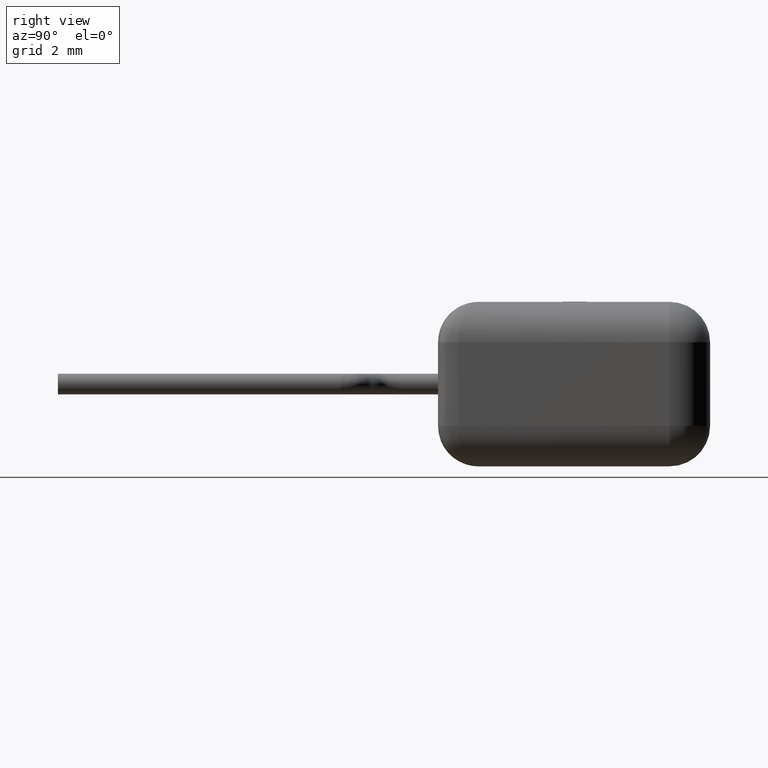
[diagram: clean part render]
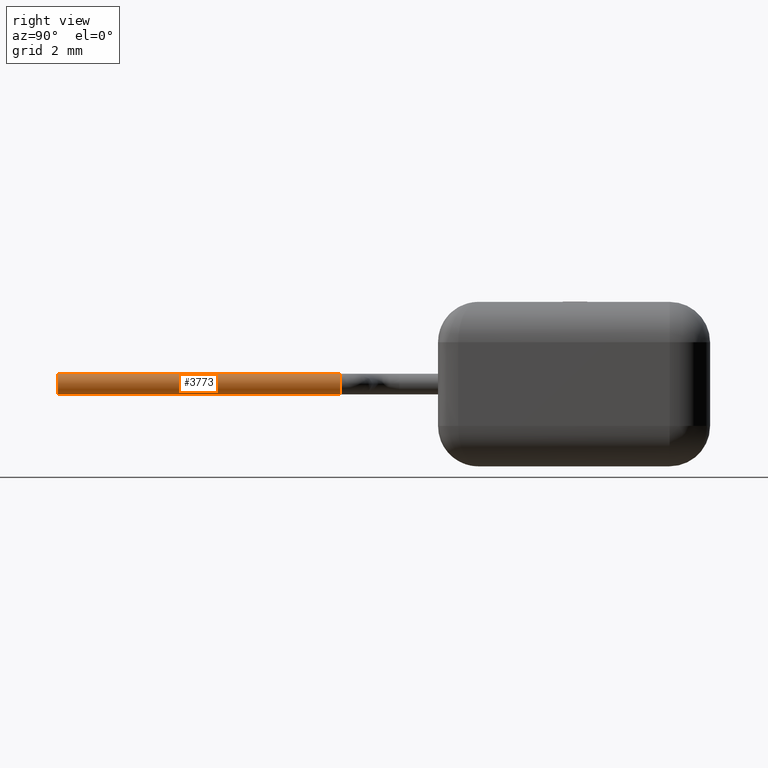
[diagram: same view with one face highlighted and labeled with its STEP entity id]
A machine part, right view. The second image highlights one B-rep face of the part: STEP entity #3773.
In plain terms, the highlighted face is a freeform B-spline surface patch.
Its self-contained STEP definition (entity closure, byte-faithful):
#47 = DIRECTION ( 'NONE',  ( 0.0000000000000000000, 0.0000000000000000000, -1.000000000000000000 ) ) ;
#275 = CARTESIAN_POINT ( 'NONE',  ( 6.094999999999994400, -2.406829999999994000, 1.780000000000000200 ) ) ;
#380 = VERTEX_POINT ( 'NONE', #275 ) ;
#426 = FACE_OUTER_BOUND ( 'NONE', #2513, .T. ) ;
#519 = CARTESIAN_POINT ( 'NONE',  ( 6.094999999999994400, -2.406829999999994000, 1.780000000000000200 ) ) ;
#527 = CARTESIAN_POINT ( 'NONE',  ( 6.094999999999994400, -2.406829999999994000, 1.780000000000000200 ) ) ;
#562 = VERTEX_POINT ( 'NONE', #3408 ) ;
#575 = CARTESIAN_POINT ( 'NONE',  ( 6.604996013411329700, -2.404813491992425800, 2.290000000000000500 ) ) ;
#677 = ORIENTED_EDGE ( 'NONE', *, *, #5501, .T. ) ;
#1021 = VECTOR ( 'NONE', #5169, 1000.000000000000000 ) ;
#1056 = EDGE_CURVE ( 'NONE', #562, #6255, #6232, .T. ) ;
#1102 = CARTESIAN_POINT ( 'NONE',  ( 6.094999999999992600, -9.406829999999988700, 1.780000000000000200 ) ) ;
#1261 = VERTEX_POINT ( 'NONE', #2865 ) ;
#1633 = CARTESIAN_POINT ( 'NONE',  ( 6.604996013411329700, -2.404813491992425800, 1.780000000000000200 ) ) ;
#1847 = DIRECTION ( 'NONE',  ( -2.478176394252582100E-016, -1.000000000000000000, 0.0000000000000000000 ) ) ;
#2052 = CARTESIAN_POINT ( 'NONE',  ( 6.094999999999992600, -9.406829999999992300, 1.780000000000000200 ) ) ;
#2183 = CARTESIAN_POINT ( 'NONE',  ( 6.094999999999994400, -2.406829999999994000, 2.035000000000000100 ) ) ;
#2205 = DIRECTION ( 'NONE',  ( -0.003953937269740831500, 0.9999921831594821300, 0.0000000000000000000 ) ) ;
#2513 = EDGE_LOOP ( 'NONE', ( #6582, #677, #3518, #6098 ) ) ;
#2595 = CARTESIAN_POINT ( 'NONE',  ( 6.604996013411327900, -9.404813491992420900, 2.290000000000000500 ) ) ;
#2641 = CARTESIAN_POINT ( 'NONE',  ( 6.094999999999994400, -2.406829999999994000, 2.290000000000000500 ) ) ;
#2865 = CARTESIAN_POINT ( 'NONE',  ( 6.094999999999994400, -2.406829999999994000, 2.290000000000000500 ) ) ;
#3086 = CARTESIAN_POINT ( 'NONE',  ( 6.094999999999994400, -2.406829999999994000, 2.290000000000000500 ) ) ;
#3274 = CIRCLE ( 'NONE', #6622, 0.2550000000000000000 ) ;
#3275 = DIRECTION ( 'NONE',  ( 0.0000000000000000000, 0.0000000000000000000, -1.000000000000000000 ) ) ;
#3408 = CARTESIAN_POINT ( 'NONE',  ( 6.094999999999992600, -9.406829999999992300, 2.290000000000000500 ) ) ;
#3518 = ORIENTED_EDGE ( 'NONE', *, *, #1056, .T. ) ;
#3613 = CARTESIAN_POINT ( 'NONE',  ( 6.604996013411327900, -9.404813491992420900, 1.780000000000000200 ) ) ;
#3659 = CARTESIAN_POINT ( 'NONE',  ( 6.094999999999992600, -9.406829999999988700, 2.290000000000000500 ) ) ;
#3671 = DIRECTION ( 'NONE',  ( -0.003953937269740831500, 0.9999921831594821300, 0.0000000000000000000 ) ) ;
#3773 = ADVANCED_FACE ( 'NONE', ( #426 ), #3876, .F. ) ;
#3776 = EDGE_CURVE ( 'NONE', #1261, #380, #3274, .T. ) ;
#3876 =( BOUNDED_SURFACE ( )  B_SPLINE_SURFACE ( 3, 1, ( 
 ( #2641, #3659 ),
 ( #575, #2595 ),
 ( #1633, #3613 ),
 ( #527, #1102 ) ),
 .UNSPECIFIED., .F., .F., .T. ) 
 B_SPLINE_SURFACE_WITH_KNOTS ( ( 4, 4 ),
 ( 2, 2 ),
 ( 0.0000000000000000000, 1.000000000000000000 ),
 ( 0.0000000000000000000, 1.000000000000000000 ),
 .UNSPECIFIED. ) 
 GEOMETRIC_REPRESENTATION_ITEM ( )  RATIONAL_B_SPLINE_SURFACE ( (
 ( 1.000000000000000000, 1.000000000000000000),
 ( 0.3333333333333333700, 0.3333333333333333700),
 ( 0.3333333333333333700, 0.3333333333333333700),
 ( 1.000000000000000000, 1.000000000000000000) ) ) 
 REPRESENTATION_ITEM ( '' )  SURFACE ( )  );
#3976 = AXIS2_PLACEMENT_3D ( 'NONE', #4691, #3671, #47 ) ;
#4691 = CARTESIAN_POINT ( 'NONE',  ( 6.094999999999992600, -9.406829999999992300, 2.035000000000000100 ) ) ;
#4832 = EDGE_CURVE ( 'NONE', #380, #6255, #6546, .T. ) ;
#5169 = DIRECTION ( 'NONE',  ( -2.478176394252582100E-016, -1.000000000000000000, 0.0000000000000000000 ) ) ;
#5217 = LINE ( 'NONE', #3086, #1021 ) ;
#5501 = EDGE_CURVE ( 'NONE', #1261, #562, #5217, .T. ) ;
#6098 = ORIENTED_EDGE ( 'NONE', *, *, #4832, .F. ) ;
#6232 = CIRCLE ( 'NONE', #3976, 0.2550000000000000000 ) ;
#6255 = VERTEX_POINT ( 'NONE', #2052 ) ;
#6369 = VECTOR ( 'NONE', #1847, 1000.000000000000000 ) ;
#6546 = LINE ( 'NONE', #519, #6369 ) ;
#6582 = ORIENTED_EDGE ( 'NONE', *, *, #3776, .F. ) ;
#6622 = AXIS2_PLACEMENT_3D ( 'NONE', #2183, #2205, #3275 ) ;